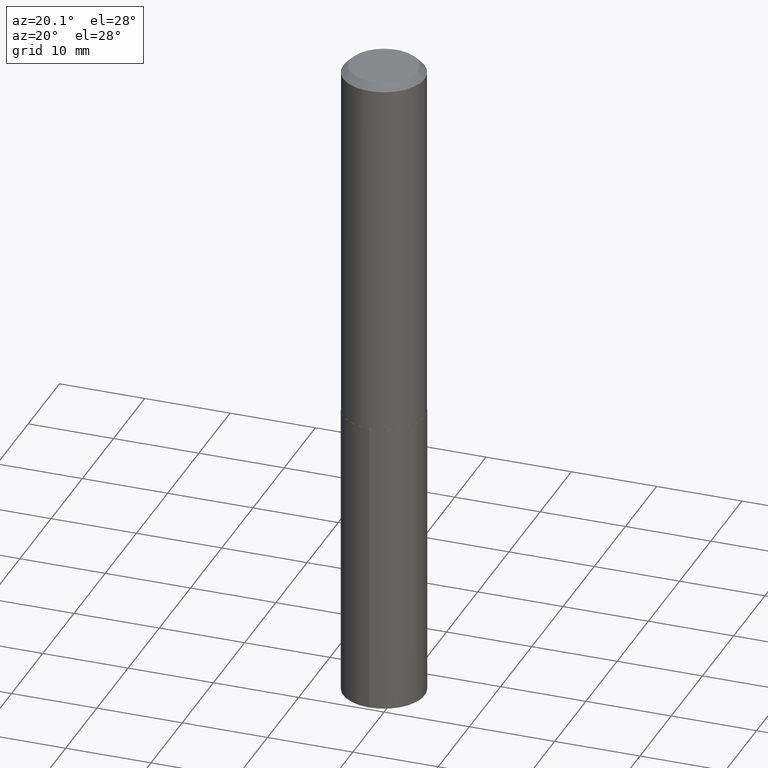
[diagram: clean part render]
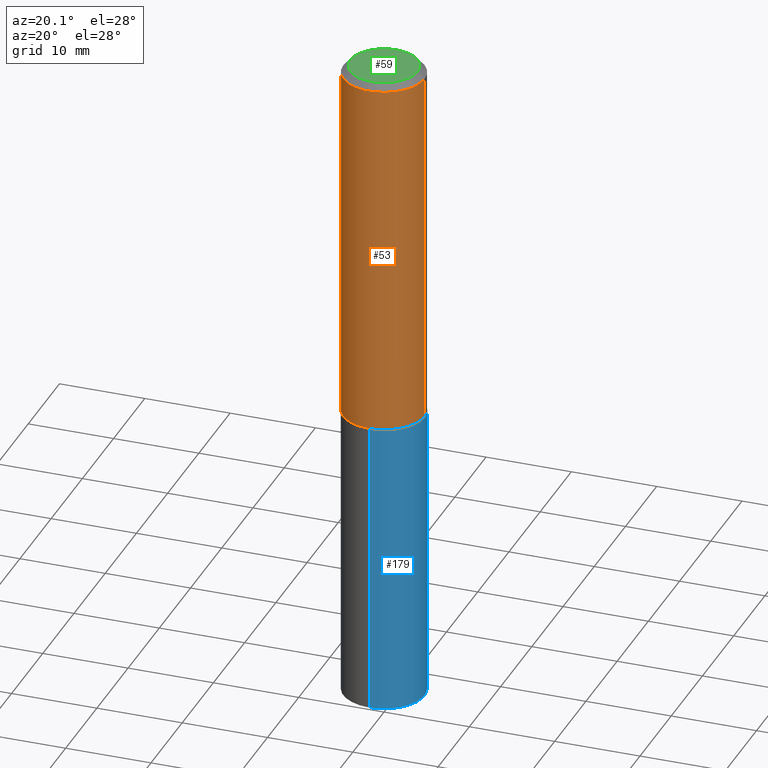
[diagram: same view with three faces highlighted in distinct colors, each labeled with its STEP entity id]
A machine part, auxiliary view with three faces highlighted in distinct colors.
Their STEP definitions:

[orange] entity #53 — the highlighted cylindrical surface (partial cylindrical patch) has radius 4.7625 mm, axis along (-0, 0, 1).
#4 = CIRCLE ( 'NONE', #133, 0.1875000000000002498 ) ;
#26 = LINE ( 'NONE', #154, #294 ) ;
#48 = VERTEX_POINT ( 'NONE', #156 ) ;
#53 = ADVANCED_FACE ( 'NONE', ( #386 ), #91, .T. ) ;
#66 = CARTESIAN_POINT ( 'NONE',  ( 0.1875000000000001110, -1.309305502066175797E-15, 9.142831454617385217E-30 ) ) ;
#91 = CYLINDRICAL_SURFACE ( 'NONE', #284, 0.1875000000000001110 ) ;
#128 = CARTESIAN_POINT ( 'NONE',  ( 0.1875000000000002498, -7.199434520694564708E-15, -1.687000000000000277 ) ) ;
#129 = ORIENTED_EDGE ( 'NONE', *, *, #290, .T. ) ;
#133 = AXIS2_PLACEMENT_3D ( 'NONE', #334, #223, #197 ) ;
#154 = CARTESIAN_POINT ( 'NONE',  ( -0.1875000000000001110, 1.332267629550188637E-15, -9.223003294227953596E-30 ) ) ;
#156 = CARTESIAN_POINT ( 'NONE',  ( -0.1875000000000002498, -4.557861389078198695E-15, -1.687000000000000277 ) ) ;
#159 = CARTESIAN_POINT ( 'NONE',  ( -0.1875000000000000278, -1.667351275683429579E-15, -0.03125000000000022204 ) ) ;
#163 = EDGE_CURVE ( 'NONE', #48, #283, #26, .T. ) ;
#170 = DIRECTION ( 'NONE',  ( -2.445468806185136597E-29, 3.491481338843145583E-15, 1.000000000000000000 ) ) ;
#197 = DIRECTION ( 'NONE',  ( 1.000000000000000000, -6.982962677686269077E-15, 0.000000000000000000 ) ) ;
#209 = EDGE_LOOP ( 'NONE', ( #263, #129, #245, #314 ) ) ;
#223 = DIRECTION ( 'NONE',  ( -2.445468806185136597E-29, 3.491481338843145583E-15, 1.000000000000000000 ) ) ;
#226 = CIRCLE ( 'NONE', #346, 0.1875000000000000278 ) ;
#245 = ORIENTED_EDGE ( 'NONE', *, *, #367, .T. ) ;
#263 = ORIENTED_EDGE ( 'NONE', *, *, #163, .F. ) ;
#264 = CARTESIAN_POINT ( 'NONE',  ( 0.000000000000000000, 0.000000000000000000, 0.000000000000000000 ) ) ;
#266 = DIRECTION ( 'NONE',  ( -2.445468806185136877E-29, 3.491481338843145188E-15, 1.000000000000000000 ) ) ;
#283 = VERTEX_POINT ( 'NONE', #159 ) ;
#284 = AXIS2_PLACEMENT_3D ( 'NONE', #264, #320, #321 ) ;
#290 = EDGE_CURVE ( 'NONE', #48, #340, #4, .T. ) ;
#294 = VECTOR ( 'NONE', #266, 39.37007874015748143 ) ;
#313 = DIRECTION ( 'NONE',  ( -2.445468806185136877E-29, 3.491481338843145188E-15, 1.000000000000000000 ) ) ;
#314 = ORIENTED_EDGE ( 'NONE', *, *, #373, .F. ) ;
#317 = DIRECTION ( 'NONE',  ( 1.000000000000000000, -6.982962677686265922E-15, 0.000000000000000000 ) ) ;
#320 = DIRECTION ( 'NONE',  ( -2.445468806185136597E-29, 3.491481338843145583E-15, 1.000000000000000000 ) ) ;
#321 = DIRECTION ( 'NONE',  ( 1.000000000000000000, -6.982962677686266711E-15, 4.876176775795935793E-29 ) ) ;
#328 = LINE ( 'NONE', #66, #387 ) ;
#334 = CARTESIAN_POINT ( 'NONE',  ( 4.125505876034326327E-29, -5.890129018628388122E-15, -1.687000000000000277 ) ) ;
#340 = VERTEX_POINT ( 'NONE', #128 ) ;
#346 = AXIS2_PLACEMENT_3D ( 'NONE', #370, #170, #317 ) ;
#367 = EDGE_CURVE ( 'NONE', #340, #369, #328, .T. ) ;
#369 = VERTEX_POINT ( 'NONE', #377 ) ;
#370 = CARTESIAN_POINT ( 'NONE',  ( 7.642090019328606165E-31, -1.091087918388490760E-16, -0.03125000000000022204 ) ) ;
#373 = EDGE_CURVE ( 'NONE', #283, #369, #226, .T. ) ;
#377 = CARTESIAN_POINT ( 'NONE',  ( 0.1875000000000000278, -1.418414293905024109E-15, -0.03125000000000022204 ) ) ;
#386 = FACE_OUTER_BOUND ( 'NONE', #209, .T. ) ;
#387 = VECTOR ( 'NONE', #313, 39.37007874015748143 ) ;

[blue] entity #179 — the highlighted cylindrical surface (partial cylindrical patch) has radius 4.7625 mm, axis along (-0, 0, 1).
#12 = VERTEX_POINT ( 'NONE', #233 ) ;
#24 = DIRECTION ( 'NONE',  ( -2.445700127513827662E-29, 3.491150073534467548E-15, 1.000000000000000000 ) ) ;
#33 = CARTESIAN_POINT ( 'NONE',  ( -1.309305502066100264E-15, -0.1875000000000106581, -3.056755581075087047 ) ) ;
#40 = CARTESIAN_POINT ( 'NONE',  ( -1.309305502066133790E-15, -0.1875000000000059119, -1.687499999999999778 ) ) ;
#62 = DIRECTION ( 'NONE',  ( -6.982962677686265922E-15, -1.000000000000000000, 2.913971193241880372E-15 ) ) ;
#65 = EDGE_CURVE ( 'NONE', #224, #131, #119, .T. ) ;
#92 = CARTESIAN_POINT ( 'NONE',  ( 4.126728610437418568E-29, -5.891874759297808836E-15, -1.687500000000000222 ) ) ;
#119 = CIRCLE ( 'NONE', #164, 0.1875000000000000278 ) ;
#126 = DIRECTION ( 'NONE',  ( -2.445700127513827662E-29, 3.491150073534467548E-15, 1.000000000000000000 ) ) ;
#130 = CARTESIAN_POINT ( 'NONE',  ( 1.332267629550228869E-15, 0.1874999999999941158, -1.687500000000000888 ) ) ;
#131 = VERTEX_POINT ( 'NONE', #326 ) ;
#135 = EDGE_CURVE ( 'NONE', #375, #12, #172, .T. ) ;
#148 = VECTOR ( 'NONE', #168, 39.37007874015748143 ) ;
#152 = CARTESIAN_POINT ( 'NONE',  ( 4.126728610437418568E-29, -5.891874759297808836E-15, -1.687500000000000222 ) ) ;
#157 = DIRECTION ( 'NONE',  ( -2.445700127513827662E-29, 3.491150073534467548E-15, 1.000000000000000000 ) ) ;
#164 = AXIS2_PLACEMENT_3D ( 'NONE', #297, #157, #239 ) ;
#168 = DIRECTION ( 'NONE',  ( -2.445700127513827662E-29, 3.491150073534467548E-15, 1.000000000000000000 ) ) ;
#172 = CIRCLE ( 'NONE', #272, 0.1875000000000000278 ) ;
#176 = ORIENTED_EDGE ( 'NONE', *, *, #333, .F. ) ;
#178 = ORIENTED_EDGE ( 'NONE', *, *, #135, .F. ) ;
#179 = ADVANCED_FACE ( 'NONE', ( #380 ), #212, .T. ) ;
#184 = DIRECTION ( 'NONE',  ( -6.982962677686265922E-15, -1.000000000000000000, 2.913971193241880372E-15 ) ) ;
#187 = VECTOR ( 'NONE', #190, 39.37007874015748143 ) ;
#190 = DIRECTION ( 'NONE',  ( -2.445700127513827662E-29, 3.491150073534467548E-15, 1.000000000000000000 ) ) ;
#193 = ORIENTED_EDGE ( 'NONE', *, *, #65, .T. ) ;
#212 = CYLINDRICAL_SURFACE ( 'NONE', #352, 0.1875000000000000278 ) ;
#216 = LINE ( 'NONE', #130, #187 ) ;
#224 = VERTEX_POINT ( 'NONE', #33 ) ;
#233 = CARTESIAN_POINT ( 'NONE',  ( 1.332267629550262396E-15, 0.1874999999999940603, -1.687500000000000888 ) ) ;
#239 = DIRECTION ( 'NONE',  ( -6.982962677686265922E-15, -1.000000000000000000, 2.913971193241880372E-15 ) ) ;
#272 = AXIS2_PLACEMENT_3D ( 'NONE', #152, #126, #184 ) ;
#295 = EDGE_CURVE ( 'NONE', #131, #12, #216, .T. ) ;
#297 = CARTESIAN_POINT ( 'NONE',  ( 7.475517159671779799E-29, -1.067215148185558012E-14, -3.056755581075087491 ) ) ;
#299 = LINE ( 'NONE', #40, #148 ) ;
#310 = EDGE_LOOP ( 'NONE', ( #193, #318, #178, #176 ) ) ;
#318 = ORIENTED_EDGE ( 'NONE', *, *, #295, .T. ) ;
#326 = CARTESIAN_POINT ( 'NONE',  ( 1.332267629550262396E-15, 0.1874999999999893141, -3.056755581075088379 ) ) ;
#333 = EDGE_CURVE ( 'NONE', #224, #375, #299, .T. ) ;
#352 = AXIS2_PLACEMENT_3D ( 'NONE', #92, #24, #62 ) ;
#366 = CARTESIAN_POINT ( 'NONE',  ( -1.309305502066133790E-15, -0.1875000000000059119, -1.687499999999999778 ) ) ;
#375 = VERTEX_POINT ( 'NONE', #366 ) ;
#380 = FACE_OUTER_BOUND ( 'NONE', #310, .T. ) ;

[green] entity #59 — the highlighted planar face has unit normal (0, -0, -1).
#9 = ORIENTED_EDGE ( 'NONE', *, *, #45, .T. ) ;
#29 = DIRECTION ( 'NONE',  ( 1.000000000000000000, -6.982962677686266711E-15, 4.876166487936958658E-29 ) ) ;
#45 = EDGE_CURVE ( 'NONE', #114, #337, #293, .T. ) ;
#55 = DIRECTION ( 'NONE',  ( -1.000000000000000000, 6.982962677686265922E-15, -4.876176775795935793E-29 ) ) ;
#59 = ADVANCED_FACE ( 'NONE', ( #349 ), #236, .F. ) ;
#60 = DIRECTION ( 'NONE',  ( -2.445468806185136597E-29, 3.491481338843145583E-15, 1.000000000000000000 ) ) ;
#83 = CARTESIAN_POINT ( 'NONE',  ( 0.1562500000000000000, -1.233702489286406538E-15, 9.552245033430668582E-19 ) ) ;
#102 = DIRECTION ( 'NONE',  ( 1.000000000000000000, -6.982962677686266711E-15, 4.876166487936958658E-29 ) ) ;
#104 = ORIENTED_EDGE ( 'NONE', *, *, #311, .T. ) ;
#114 = VERTEX_POINT ( 'NONE', #83 ) ;
#123 = CARTESIAN_POINT ( 'NONE',  ( -2.335971725809281832E-47, 3.335148527799649409E-33, 9.552245033349382783E-19 ) ) ;
#146 = AXIS2_PLACEMENT_3D ( 'NONE', #123, #60, #29 ) ;
#188 = CARTESIAN_POINT ( 'NONE',  ( -1.167985862904640916E-47, 1.667574263899824705E-33, 4.776122516674691392E-19 ) ) ;
#218 = CIRCLE ( 'NONE', #353, 0.1562500000000000000 ) ;
#225 = AXIS2_PLACEMENT_3D ( 'NONE', #188, #269, #55 ) ;
#236 = PLANE ( 'NONE',  #225 ) ;
#269 = DIRECTION ( 'NONE',  ( 2.438088387897960049E-29, -3.491481338843145188E-15, -1.000000000000000000 ) ) ;
#276 = CARTESIAN_POINT ( 'NONE',  ( -2.335971725809281832E-47, 3.335148527799649409E-33, 9.552245033349382783E-19 ) ) ;
#280 = CARTESIAN_POINT ( 'NONE',  ( -0.1562500000000000000, 1.145642314307902541E-15, 9.552245033271172694E-19 ) ) ;
#293 = CIRCLE ( 'NONE', #146, 0.1562500000000000000 ) ;
#311 = EDGE_CURVE ( 'NONE', #337, #114, #218, .T. ) ;
#337 = VERTEX_POINT ( 'NONE', #280 ) ;
#349 = FACE_OUTER_BOUND ( 'NONE', #359, .T. ) ;
#353 = AXIS2_PLACEMENT_3D ( 'NONE', #276, #361, #102 ) ;
#359 = EDGE_LOOP ( 'NONE', ( #104, #9 ) ) ;
#361 = DIRECTION ( 'NONE',  ( -2.445468806185136597E-29, 3.491481338843145583E-15, 1.000000000000000000 ) ) ;